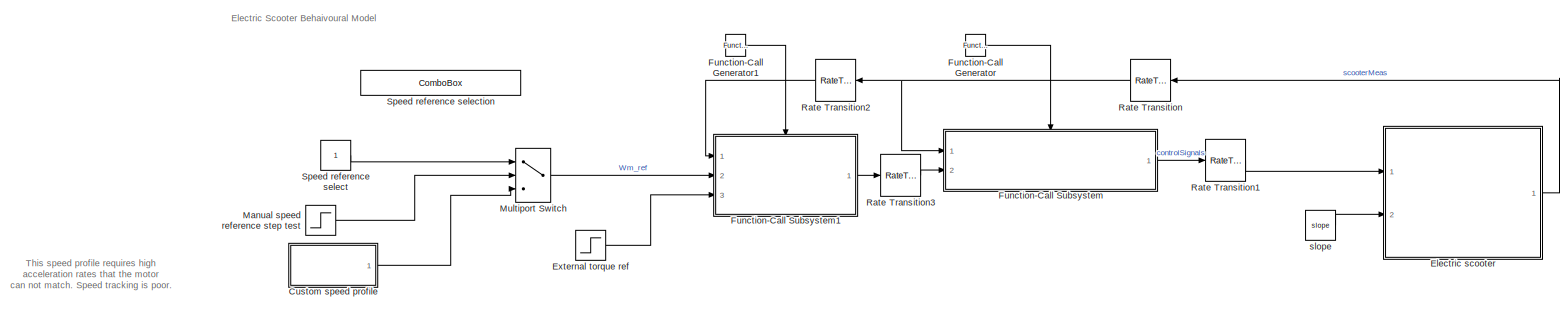
[diagram: root canvas - part 1/1, most of the canvas]
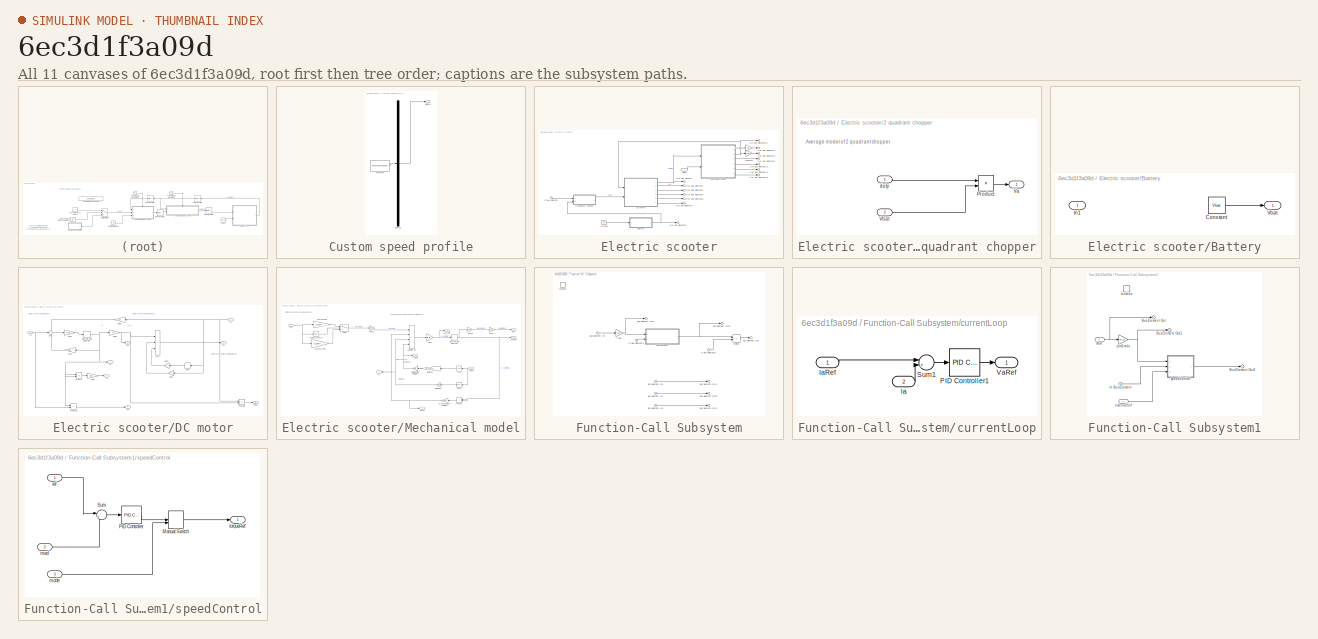
[diagram: thumbnail index - all 11 canvases of the model, root first then tree order]
MODEL slx_6ec3d1f3a09d
KIND model
CONFIG AbsTol = auto
CONFIG EnableMultiTasking = on
CONFIG FixedStep = Ts_mf
CONFIG MaxStep = auto
CONFIG MinStep = auto
CONFIG RelTol = 1e-3
CONFIG SampleTimeConstraint = Unconstrained
CONFIG SolverName = FixedStepAuto
CONFIG StartTime = 0
CONFIG StopTime = 200
BLOCK [SubSystem] Custom speed profile
  ClipboardFcn = sigbuilder_block('clipboard');
  CloseFcn = sigbuilder_block('close');
  ContinueFcn = sigbuilder_block('continue');
  CopyFcn = sigbuilder_block('copy');
  DeleteFcn = sigbuilder_block('delete');
  LoadFcn = sigbuilder_block('load');
  MaskHideContents = on
  ModelCloseFcn = sigbuilder_block('modelClose');
  NameChangeFcn = sigbuilder_block('namechange');
  OpenFcn = sigbuilder_block('open',[437.6 199.2 550.4 400 ]);
  PauseFcn = sigbuilder_block('pause');
  Ports = [0, 1]
  PreSaveFcn = sigbuilder_block('preSave');
  RequestExecContextInheritance = off
  StartFcn = sigbuilder_block('start');
  StopFcn = sigbuilder_block('stop');
  Tag = STV Subsys
BLOCK [Demux] Custom speed profile/Demux
  DisplayOption = none
  Outputs = 1
  Ports = [1, 1]
  Tag = STV Demux
BLOCK [FromWorkspace] Custom speed profile/FromWs
  Tag = STV FromWs
  VariableName = tuvar
BLOCK [Outport] Custom speed profile/Signal 1
  Tag = STV Outport
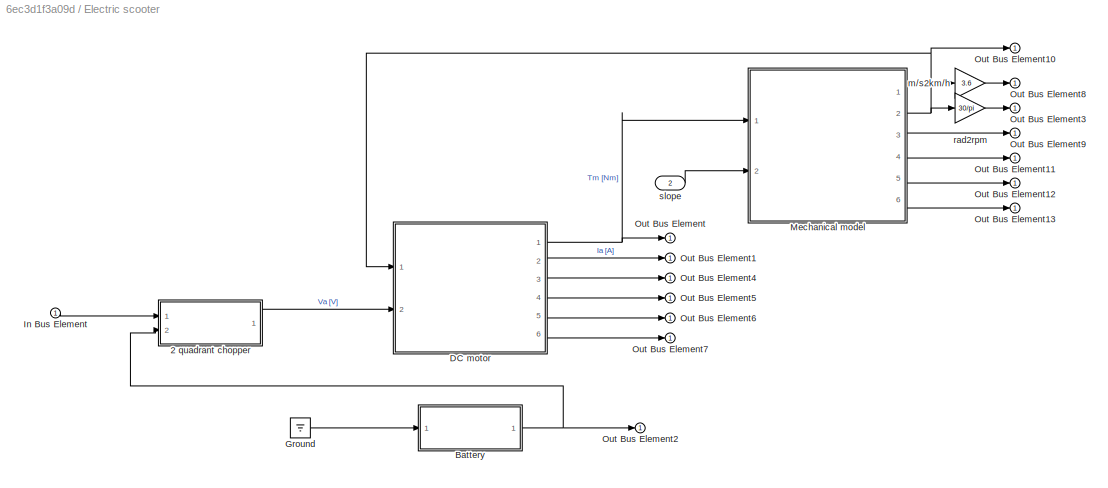
BLOCK [SubSystem] Electric scooter
  Ports = [2, 1]
  RequestExecContextInheritance = off
BLOCK [SubSystem] Electric scooter/2 quadrant chopper
  Ports = [2, 1]
  RequestExecContextInheritance = off
BLOCK [Product] Electric scooter/2 quadrant chopper/Product
  Ports = [2, 1]
BLOCK [Outport] Electric scooter/2 quadrant chopper/Va
BLOCK [Inport] Electric scooter/2 quadrant chopper/Vbat
  Port = 2
BLOCK [Inport] Electric scooter/2 quadrant chopper/duty
BLOCK [SubSystem] Electric scooter/Battery
  Ports = [1, 1]
  RequestExecContextInheritance = off
BLOCK [Constant] Electric scooter/Battery/Constant
  Value = Vbat
BLOCK [Inport] Electric scooter/Battery/In1
BLOCK [Outport] Electric scooter/Battery/Vbat
BLOCK [SubSystem] Electric scooter/DC motor
  Ports = [2, 6]
  RequestExecContextInheritance = off
BLOCK [DiscreteIntegrator] Electric scooter/DC motor/Discrete-Time Integrator
  ICPrevOutput = DiscIntNeverNeededParam
  ICPrevScaledInput = DiscIntNeverNeededParam
  InitialConditionSetting = Auto
  Ports = [1, 1]
  SampleTime = -1
BLOCK [Gain] Electric scooter/DC motor/Gain1
  Gain = D
  NameLocation = top
BLOCK [Gain] Electric scooter/DC motor/Gain2
  Gain = Kf
  NameLocation = top
BLOCK [Gain] Electric scooter/DC motor/Gain3
  Gain = Ra
  NameLocation = top
BLOCK [Gain] Electric scooter/DC motor/Gain4
  Gain = 1/La
BLOCK [Gain] Electric scooter/DC motor/Gain5
  Gain = Kt
BLOCK [Gain] Electric scooter/DC motor/Gain6
  Gain = Ke
BLOCK [Gain] Electric scooter/DC motor/Gain7
  Gain = Ra
BLOCK [Outport] Electric scooter/DC motor/Ia
  Port = 2
  VectorParamsAs1DForOutWhenUnconnected = off
BLOCK [Outport] Electric scooter/DC motor/Pa
  Port = 4
  VectorParamsAs1DForOutWhenUnconnected = off
BLOCK [Outport] Electric scooter/DC motor/Pj
  Port = 3
  VectorParamsAs1DForOutWhenUnconnected = off
BLOCK [Outport] Electric scooter/DC motor/Pmec
  Port = 5
  VectorParamsAs1DForOutWhenUnconnected = off
BLOCK [Product] Electric scooter/DC motor/Product
  Ports = [2, 1]
BLOCK [Product] Electric scooter/DC motor/Product1
  Ports = [2, 1]
BLOCK [Product] Electric scooter/DC motor/Product2
  Ports = [2, 1]
BLOCK [Signum] Electric scooter/DC motor/Sign
BLOCK [Sum] Electric scooter/DC motor/Sum
  IconShape = rectangular
  Inputs = +--
  Ports = [3, 1]
BLOCK [Sum] Electric scooter/DC motor/Sum1
  Inputs = -+-
  Ports = [3, 1]
BLOCK [Outport] Electric scooter/DC motor/Tem
  Port = 6
  VectorParamsAs1DForOutWhenUnconnected = off
BLOCK [Outport] Electric scooter/DC motor/Tm
  VectorParamsAs1DForOutWhenUnconnected = off
BLOCK [Inport] Electric scooter/DC motor/Va
  Port = 2
BLOCK [Inport] Electric scooter/DC motor/W
  NameLocation = top
BLOCK [Ground] Electric scooter/Ground
BLOCK [Inport] Electric scooter/In Bus Element
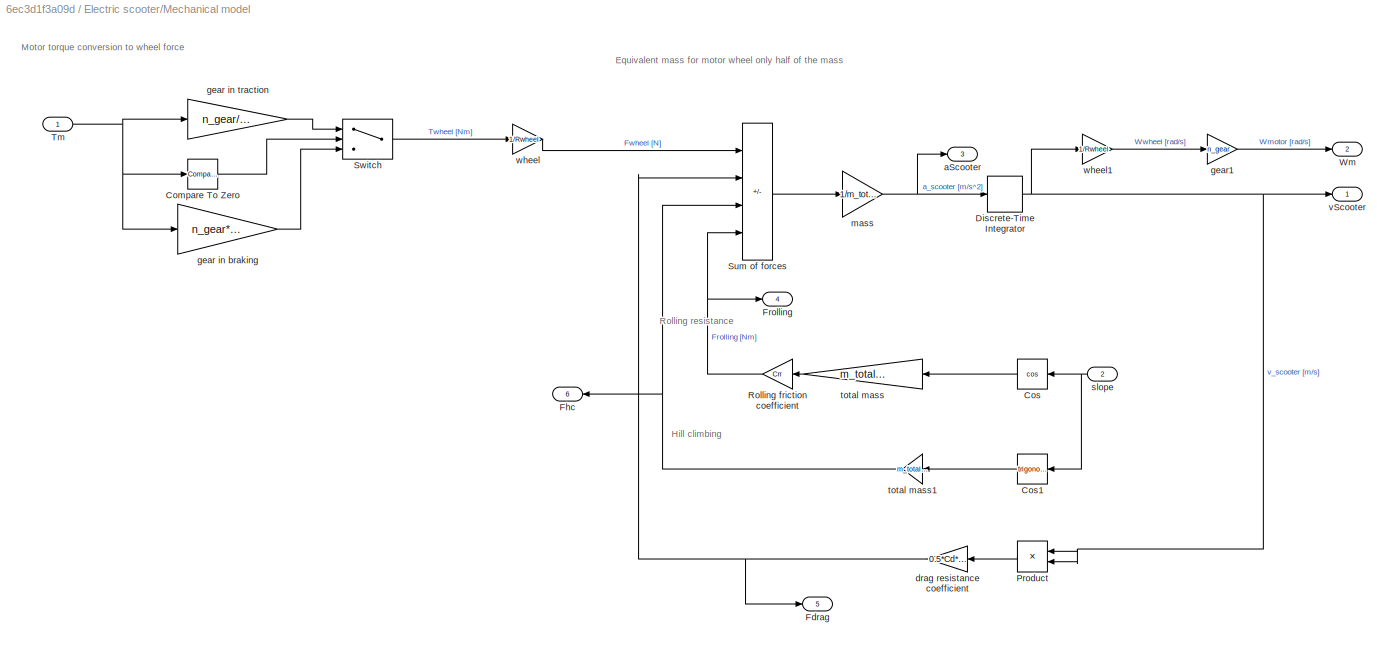
BLOCK [SubSystem] Electric scooter/Mechanical model
  Ports = [2, 6]
  RequestExecContextInheritance = off
BLOCK [Reference] Electric scooter/Mechanical model/Compare To Zero  REF=simulink/Logic and Bit
Operations/Compare
To Zero
  Ports = [1, 1]
  SourceBlock = simulink/Logic and Bit\nOperations/Compare\nTo Zero
  SourceProductBaseCode = SL
  SourceType = Compare To Zero
BLOCK [Trigonometry] Electric scooter/Mechanical model/Cos
  NameLocation = top
  Operator = cos
  Ports = [1, 1]
BLOCK [Trigonometry] Electric scooter/Mechanical model/Cos1
  NameLocation = top
  Ports = [1, 1]
BLOCK [DiscreteIntegrator] Electric scooter/Mechanical model/Discrete-Time Integrator
  ICPrevOutput = DiscIntNeverNeededParam
  ICPrevScaledInput = DiscIntNeverNeededParam
  InitialConditionSetting = Auto
  Ports = [1, 1]
  SampleTime = -1
BLOCK [Outport] Electric scooter/Mechanical model/Fdrag
  Port = 5
BLOCK [Outport] Electric scooter/Mechanical model/Fhc
  NameLocation = top
  Port = 6
BLOCK [Outport] Electric scooter/Mechanical model/Frolling
  Port = 4
BLOCK [Product] Electric scooter/Mechanical model/Product
  NameLocation = top
  Ports = [2, 1]
BLOCK [Gain] Electric scooter/Mechanical model/Rolling friction coefficient
  Gain = Crr
BLOCK [Sum] Electric scooter/Mechanical model/Sum of forces
  IconShape = rectangular
  Inputs = +---
  Ports = [4, 1]
BLOCK [Switch] Electric scooter/Mechanical model/Switch
  Criteria = u2 > Threshold
  InputSameDT = off
  SaturateOnIntegerOverflow = off
BLOCK [Inport] Electric scooter/Mechanical model/Tm
BLOCK [Outport] Electric scooter/Mechanical model/Wm
  Port = 2
BLOCK [Outport] Electric scooter/Mechanical model/aScooter
  Port = 3
BLOCK [Gain] Electric scooter/Mechanical model/drag resistance coefficient
  Gain = 0.5*Cd*A*rho
  NameLocation = top
BLOCK [Gain] Electric scooter/Mechanical model/gear in braking
  Gain = n_gear*eff_gear
BLOCK [Gain] Electric scooter/Mechanical model/gear in traction
  Gain = n_gear/eff_gear
BLOCK [Gain] Electric scooter/Mechanical model/gear1
  Gain = n_gear
BLOCK [Gain] Electric scooter/Mechanical model/mass
  Gain = 1/m_total/2
BLOCK [Inport] Electric scooter/Mechanical model/slope
  NameLocation = top
  Port = 2
BLOCK [Gain] Electric scooter/Mechanical model/total mass
  Gain = m_total/2*g
  NameLocation = top
BLOCK [Gain] Electric scooter/Mechanical model/total mass1
  Gain = m_total/2*g
  NameLocation = top
BLOCK [Outport] Electric scooter/Mechanical model/vScooter
BLOCK [Gain] Electric scooter/Mechanical model/wheel
  Gain = 1/Rwheel
BLOCK [Gain] Electric scooter/Mechanical model/wheel1
  Gain = 1/Rwheel
BLOCK [Outport] Electric scooter/Out Bus Element
BLOCK [Outport] Electric scooter/Out Bus Element1
BLOCK [Outport] Electric scooter/Out Bus Element10
BLOCK [Outport] Electric scooter/Out Bus Element11
BLOCK [Outport] Electric scooter/Out Bus Element12
BLOCK [Outport] Electric scooter/Out Bus Element13
BLOCK [Outport] Electric scooter/Out Bus Element2
BLOCK [Outport] Electric scooter/Out Bus Element3
BLOCK [Outport] Electric scooter/Out Bus Element4
BLOCK [Outport] Electric scooter/Out Bus Element5
BLOCK [Outport] Electric scooter/Out Bus Element6
BLOCK [Outport] Electric scooter/Out Bus Element7
BLOCK [Outport] Electric scooter/Out Bus Element8
BLOCK [Outport] Electric scooter/Out Bus Element9
BLOCK [Gain] Electric scooter/m//s2km//h
  Gain = 3.6
BLOCK [Gain] Electric scooter/rad2rpm
  Gain = 30/pi
BLOCK [Inport] Electric scooter/slope
  Port = 2
BLOCK [Step] External torque ref
  After = Kt*8
  SampleTime = 0
  Time = 0.1
BLOCK [Reference] Function-Call Generator  REF=simulink/Ports &
Subsystems/Function-Call
Generator
  Ports = [0, 1]
  SourceBlock = simulink/Ports &\nSubsystems/Function-Call\nGenerator
  SourceProductBaseCode = SL
  SourceType = Function-Call Generator
BLOCK [Reference] Function-Call Generator1  REF=simulink/Ports &
Subsystems/Function-Call
Generator
  Ports = [0, 1]
  SourceBlock = simulink/Ports &\nSubsystems/Function-Call\nGenerator
  SourceProductBaseCode = SL
  SourceType = Function-Call Generator
BLOCK [SubSystem] Function-Call Subsystem
  Ports = [2, 1, 0, 1]
  RequestExecContextInheritance = off
  TreatAsAtomicUnit = on
BLOCK [Inport] Function-Call Subsystem/Bus Element In1
  Port = 2
BLOCK [Inport] Function-Call Subsystem/Bus Element In2
  Port = 2
BLOCK [Inport] Function-Call Subsystem/Bus Element In3
  Port = 2
BLOCK [Inport] Function-Call Subsystem/Bus Element In4
  Port = 2
BLOCK [Outport] Function-Call Subsystem/Bus Element Out
BLOCK [Outport] Function-Call Subsystem/Bus Element Out1
BLOCK [Outport] Function-Call Subsystem/Bus Element Out2
BLOCK [Outport] Function-Call Subsystem/Bus Element Out3
BLOCK [Outport] Function-Call Subsystem/Bus Element Out4
BLOCK [Outport] Function-Call Subsystem/Bus Element Out5
BLOCK [Product] Function-Call Subsystem/Divide
  Inputs = */
  Ports = [2, 1]
BLOCK [Gain] Function-Call Subsystem/Gain
  Gain = 1/Kt
BLOCK [Inport] Function-Call Subsystem/In Bus Element1
BLOCK [Inport] Function-Call Subsystem/In Bus Element2
BLOCK [SubSystem] Function-Call Subsystem/currentLoop
  Ports = [2, 1]
  RequestExecContextInheritance = off
BLOCK [Inport] Function-Call Subsystem/currentLoop/Ia
  Port = 2
BLOCK [Inport] Function-Call Subsystem/currentLoop/IaRef
BLOCK [Reference] Function-Call Subsystem/currentLoop/PID Controller1  REF=slpidlib/PID Controller
  Ports = [1, 1]
  SourceBlock = slpidlib/PID Controller
  SourceProductBaseCode = SL
  SourceType = PID 1dof
BLOCK [Sum] Function-Call Subsystem/currentLoop/Sum1
  Inputs = |+-
  Ports = [2, 1]
BLOCK [Outport] Function-Call Subsystem/currentLoop/VaRef
BLOCK [TriggerPort] Function-Call Subsystem/function
  Ports = []
  StatesWhenEnabling = held
  TriggerType = function-call
  VariantControl = (inherit)
BLOCK [SubSystem] Function-Call Subsystem1
  Ports = [3, 1, 0, 1]
  RequestExecContextInheritance = off
  TreatAsAtomicUnit = on
BLOCK [Outport] Function-Call Subsystem1/Bus Element Out
BLOCK [Outport] Function-Call Subsystem1/Bus Element Out1
BLOCK [Outport] Function-Call Subsystem1/Bus Element Out2
BLOCK [Inport] Function-Call Subsystem1/In Bus Element
BLOCK [Inport] Function-Call Subsystem1/Wm*
  Port = 2
BLOCK [Inport] Function-Call Subsystem1/externalIref
  Port = 3
BLOCK [TriggerPort] Function-Call Subsystem1/function
  Ports = []
  StatesWhenEnabling = held
  TriggerType = function-call
  VariantControl = (inherit)
BLOCK [Gain] Function-Call Subsystem1/rpm2rads
  Gain = pi/30
BLOCK [SubSystem] Function-Call Subsystem1/speedControl
  Ports = [3, 1]
  RequestExecContextInheritance = off
BLOCK [ManualSwitch] Function-Call Subsystem1/speedControl/Manual Switch
  CurrentSetting = 0
BLOCK [Reference] Function-Call Subsystem1/speedControl/PID Controller  REF=slpidlib/PID Controller
  Ports = [1, 1]
  SourceBlock = slpidlib/PID Controller
  SourceProductBaseCode = SL
  SourceType = PID 1dof
BLOCK [Sum] Function-Call Subsystem1/speedControl/Sum
  Inputs = |+-
  Ports = [2, 1]
BLOCK [Inport] Function-Call Subsystem1/speedControl/med
  Port = 2
BLOCK [Inport] Function-Call Subsystem1/speedControl/mode
  Port = 3
BLOCK [Inport] Function-Call Subsystem1/speedControl/ref
BLOCK [Outport] Function-Call Subsystem1/speedControl/torqueRef
BLOCK [Step] Manual speed reference step test
  After = 1000
  SampleTime = 0
  Time = 0.1
BLOCK [MultiPortSwitch] Multiport Switch
  InputSameDT = off
  Inputs = 2
  Ports = [3, 1]
  SaturateOnIntegerOverflow = off
BLOCK [RateTransition] Rate Transition
  OutPortSampleTime = Tcontrol
BLOCK [RateTransition] Rate Transition1
  OutPortSampleTime = Ts_mf
BLOCK [RateTransition] Rate Transition2
  OutPortSampleTime = Tcontrol*10
BLOCK [RateTransition] Rate Transition3
  OutPortSampleTime = Tcontrol
BLOCK [Constant] Speed reference select
BLOCK [ComboBox] Speed reference selection
  LabelPosition = Hide
  NameLocation = left
  SelectedLabel = Step reference
BLOCK [Constant] slope
  Value = slope
ANNOTATION (root): Electric Scooter Behaivoural Model
ANNOTATION (root): This speed profile requires high acceleration rates that the motor can not match. Speed tracking is poor.
ANNOTATION Electric scooter/2 quadrant chopper: Average model of 2 quadrant chopper
ANNOTATION Electric scooter/DC motor: Motor mechanical torque without losses
ANNOTATION Electric scooter/DC motor: Motorraren eredu elektrikoa
ANNOTATION Electric scooter/DC motor: Motorraren eredu mekanikoa
ANNOTATION Electric scooter/DC motor: T_e_m
ANNOTATION Electric scooter/DC motor: i_a
ANNOTATION Electric scooter/Mechanical model: Equivalent mass for motor wheel only half of the mass
ANNOTATION Electric scooter/Mechanical model: Hill climbing
ANNOTATION Electric scooter/Mechanical model: Motor torque conversion to wheel force
ANNOTATION Electric scooter/Mechanical model: Rolling resistance
LINE Custom speed profile:1 -> Multiport Switch:3
LINE Electric scooter/2 quadrant chopper/Product:1 -> Electric scooter/2 quadrant chopper/Va:1
LINE Electric scooter/2 quadrant chopper/Vbat:1 -> Electric scooter/2 quadrant chopper/Product:2
LINE Electric scooter/2 quadrant chopper/duty:1 -> Electric scooter/2 quadrant chopper/Product:1
LINE Electric scooter/2 quadrant chopper:1 -> Electric scooter/DC motor:2
LINE Electric scooter/Battery/Constant:1 -> Electric scooter/Battery/Vbat:1
NET Electric scooter/Battery:1 -> Electric scooter/2 quadrant chopper:2, Electric scooter/Out Bus Element2:1
NET Electric scooter/DC motor/Discrete-Time Integrator:1 -> Electric scooter/DC motor/Gain3:1, Electric scooter/DC motor/Gain5:1, Electric scooter/DC motor/Ia:1, Electric scooter/DC motor/Product1:1, Electric scooter/DC motor/Product:1, Electric scooter/DC motor/Product:2
LINE Electric scooter/DC motor/Gain1:1 -> Electric scooter/DC motor/Sum:2
LINE Electric scooter/DC motor/Gain2:1 -> Electric scooter/DC motor/Sum:3
LINE Electric scooter/DC motor/Gain3:1 -> Electric scooter/DC motor/Sum1:3
LINE Electric scooter/DC motor/Gain4:1 -> Electric scooter/DC motor/Discrete-Time Integrator:1
NET Electric scooter/DC motor/Gain5:1 -> Electric scooter/DC motor/Product2:2, Electric scooter/DC motor/Sum:1, Electric scooter/DC motor/Tem:1
LINE Electric scooter/DC motor/Gain6:1 -> Electric scooter/DC motor/Sum1:1
LINE Electric scooter/DC motor/Gain7:1 -> Electric scooter/DC motor/Pj:1
LINE Electric scooter/DC motor/Product1:1 -> Electric scooter/DC motor/Pa:1
LINE Electric scooter/DC motor/Product2:1 -> Electric scooter/DC motor/Pmec:1
LINE Electric scooter/DC motor/Product:1 -> Electric scooter/DC motor/Gain7:1
LINE Electric scooter/DC motor/Sign:1 -> Electric scooter/DC motor/Gain2:1
LINE Electric scooter/DC motor/Sum1:1 -> Electric scooter/DC motor/Gain4:1
LINE Electric scooter/DC motor/Sum:1 -> Electric scooter/DC motor/Tm:1
NET Electric scooter/DC motor/Va:1 -> Electric scooter/DC motor/Product1:2, Electric scooter/DC motor/Sum1:2
NET Electric scooter/DC motor/W:1 -> Electric scooter/DC motor/Gain1:1, Electric scooter/DC motor/Gain6:1, Electric scooter/DC motor/Product2:1, Electric scooter/DC motor/Sign:1
NET Electric scooter/DC motor:1 -> Electric scooter/Mechanical model:1, Electric scooter/Out Bus Element:1
LINE Electric scooter/DC motor:2 -> Electric scooter/Out Bus Element1:1
LINE Electric scooter/DC motor:3 -> Electric scooter/Out Bus Element4:1
LINE Electric scooter/DC motor:4 -> Electric scooter/Out Bus Element5:1
LINE Electric scooter/DC motor:5 -> Electric scooter/Out Bus Element6:1
LINE Electric scooter/DC motor:6 -> Electric scooter/Out Bus Element7:1
LINE Electric scooter/Ground:1 -> Electric scooter/Battery:1
LINE Electric scooter/In Bus Element:1 -> Electric scooter/2 quadrant chopper:1
LINE Electric scooter/Mechanical model/Compare To Zero:1 -> Electric scooter/Mechanical model/Switch:2
LINE Electric scooter/Mechanical model/Cos1:1 -> Electric scooter/Mechanical model/total mass1:1
LINE Electric scooter/Mechanical model/Cos:1 -> Electric scooter/Mechanical model/total mass:1
NET Electric scooter/Mechanical model/Discrete-Time Integrator:1 -> Electric scooter/Mechanical model/Product:1, Electric scooter/Mechanical model/Product:2, Electric scooter/Mechanical model/vScooter:1, Electric scooter/Mechanical model/wheel1:1
LINE Electric scooter/Mechanical model/Product:1 -> Electric scooter/Mechanical model/drag resistance coefficient:1
NET Electric scooter/Mechanical model/Rolling friction coefficient:1 -> Electric scooter/Mechanical model/Frolling:1, Electric scooter/Mechanical model/Sum of forces:4
LINE Electric scooter/Mechanical model/Sum of forces:1 -> Electric scooter/Mechanical model/mass:1
LINE Electric scooter/Mechanical model/Switch:1 -> Electric scooter/Mechanical model/wheel:1
NET Electric scooter/Mechanical model/Tm:1 -> Electric scooter/Mechanical model/Compare To Zero:1, Electric scooter/Mechanical model/gear in braking:1, Electric scooter/Mechanical model/gear in traction:1
NET Electric scooter/Mechanical model/drag resistance coefficient:1 -> Electric scooter/Mechanical model/Fdrag:1, Electric scooter/Mechanical model/Sum of forces:2
LINE Electric scooter/Mechanical model/gear in braking:1 -> Electric scooter/Mechanical model/Switch:3
LINE Electric scooter/Mechanical model/gear in traction:1 -> Electric scooter/Mechanical model/Switch:1
LINE Electric scooter/Mechanical model/gear1:1 -> Electric scooter/Mechanical model/Wm:1
NET Electric scooter/Mechanical model/mass:1 -> Electric scooter/Mechanical model/Discrete-Time Integrator:1, Electric scooter/Mechanical model/aScooter:1
NET Electric scooter/Mechanical model/slope:1 -> Electric scooter/Mechanical model/Cos1:1, Electric scooter/Mechanical model/Cos:1
NET Electric scooter/Mechanical model/total mass1:1 -> Electric scooter/Mechanical model/Fhc:1, Electric scooter/Mechanical model/Sum of forces:3
LINE Electric scooter/Mechanical model/total mass:1 -> Electric scooter/Mechanical model/Rolling friction coefficient:1
LINE Electric scooter/Mechanical model/wheel1:1 -> Electric scooter/Mechanical model/gear1:1
LINE Electric scooter/Mechanical model/wheel:1 -> Electric scooter/Mechanical model/Sum of forces:1
LINE Electric scooter/Mechanical model:1 -> Electric scooter/m//s2km//h:1
NET Electric scooter/Mechanical model:2 -> Electric scooter/DC motor:1, Electric scooter/Out Bus Element10:1, Electric scooter/rad2rpm:1
LINE Electric scooter/Mechanical model:3 -> Electric scooter/Out Bus Element9:1
LINE Electric scooter/Mechanical model:4 -> Electric scooter/Out Bus Element11:1
LINE Electric scooter/Mechanical model:5 -> Electric scooter/Out Bus Element12:1
LINE Electric scooter/Mechanical model:6 -> Electric scooter/Out Bus Element13:1
LINE Electric scooter/m//s2km//h:1 -> Electric scooter/Out Bus Element8:1
LINE Electric scooter/rad2rpm:1 -> Electric scooter/Out Bus Element3:1
LINE Electric scooter/slope:1 -> Electric scooter/Mechanical model:2
LINE Electric scooter:1 -> Rate Transition:1
LINE External torque ref:1 -> Function-Call Subsystem1:3
LINE Function-Call Generator1:1 -> Function-Call Subsystem1:trigger
LINE Function-Call Generator:1 -> Function-Call Subsystem:trigger
LINE Function-Call Subsystem/Bus Element In1:1 -> Function-Call Subsystem/Bus Element Out5:1
LINE Function-Call Subsystem/Bus Element In2:1 -> Function-Call Subsystem/Bus Element Out4:1
LINE Function-Call Subsystem/Bus Element In3:1 -> Function-Call Subsystem/Bus Element Out2:1
LINE Function-Call Subsystem/Bus Element In4:1 -> Function-Call Subsystem/Gain:1
LINE Function-Call Subsystem/Divide:1 -> Function-Call Subsystem/Bus Element Out:1
NET Function-Call Subsystem/Gain:1 -> Function-Call Subsystem/Bus Element Out1:1, Function-Call Subsystem/currentLoop:1
LINE Function-Call Subsystem/In Bus Element1:1 -> Function-Call Subsystem/currentLoop:2
LINE Function-Call Subsystem/In Bus Element2:1 -> Function-Call Subsystem/Divide:2
LINE Function-Call Subsystem/currentLoop/Ia:1 -> Function-Call Subsystem/currentLoop/Sum1:2
LINE Function-Call Subsystem/currentLoop/IaRef:1 -> Function-Call Subsystem/currentLoop/Sum1:1
LINE Function-Call Subsystem/currentLoop/PID Controller1:1 -> Function-Call Subsystem/currentLoop/VaRef:1
LINE Function-Call Subsystem/currentLoop/Sum1:1 -> Function-Call Subsystem/currentLoop/PID Controller1:1
NET Function-Call Subsystem/currentLoop:1 -> Function-Call Subsystem/Bus Element Out3:1, Function-Call Subsystem/Divide:1
LINE Function-Call Subsystem1/In Bus Element:1 -> Function-Call Subsystem1/speedControl:2
NET Function-Call Subsystem1/Wm*:1 -> Function-Call Subsystem1/Bus Element Out:1, Function-Call Subsystem1/rpm2rads:1
LINE Function-Call Subsystem1/externalIref:1 -> Function-Call Subsystem1/speedControl:3
NET Function-Call Subsystem1/rpm2rads:1 -> Function-Call Subsystem1/Bus Element Out1:1, Function-Call Subsystem1/speedControl:1
LINE Function-Call Subsystem1/speedControl/Manual Switch:1 -> Function-Call Subsystem1/speedControl/torqueRef:1
LINE Function-Call Subsystem1/speedControl/PID Controller:1 -> Function-Call Subsystem1/speedControl/Manual Switch:1
LINE Function-Call Subsystem1/speedControl/Sum:1 -> Function-Call Subsystem1/speedControl/PID Controller:1
LINE Function-Call Subsystem1/speedControl/med:1 -> Function-Call Subsystem1/speedControl/Sum:2
LINE Function-Call Subsystem1/speedControl/mode:1 -> Function-Call Subsystem1/speedControl/Manual Switch:2
LINE Function-Call Subsystem1/speedControl/ref:1 -> Function-Call Subsystem1/speedControl/Sum:1
LINE Function-Call Subsystem1/speedControl:1 -> Function-Call Subsystem1/Bus Element Out2:1
LINE Function-Call Subsystem1:1 -> Rate Transition3:1
LINE Function-Call Subsystem:1 -> Rate Transition1:1
LINE Manual speed reference step test:1 -> Multiport Switch:2
LINE Multiport Switch:1 -> Function-Call Subsystem1:2
LINE Rate Transition1:1 -> Electric scooter:1
LINE Rate Transition2:1 -> Function-Call Subsystem1:1
LINE Rate Transition3:1 -> Function-Call Subsystem:2
NET Rate Transition:1 -> Function-Call Subsystem:1, Rate Transition2:1
LINE Speed reference select:1 -> Multiport Switch:1
LINE slope:1 -> Electric scooter:2
note: NET lines group one-source signal fan-out (src -> all destinations, sorted); 1:1 wires keep LINE
CHART Test Assessment Block states=4 transitions=14
  STATE_LABEL 'Run\n\n'
  STATE_LABEL 'steadyStateCheck\nverify(abs(IaRef-Ia)<0.02)'
  STATE_LABEL 'overshootCheck\nverify(Ia < 1.2*IaRef)'
  STATE_LABEL 'Run_1\nend'
  STATE_LABEL '[(((t > 0.506) & (t<0.58)) | ((t > 1.005) & (t<1.1)))\n]'
  STATE_LABEL '[~in(Run.steadyStateCheck)]'
  STATE_LABEL '[(((t > 0.5) & (t<0.506)) | ((t > 1) & (t<1.005)))\n]'
  STATE_LABEL '[~in(Run.overshootCheck)]'
  STATE_LABEL '[~in(Run.Run_1)]'
  STATE_LABEL 'steadyStateCheck\nverify(abs(IaRef-Ia)<0.02)'
  STATE_LABEL 'overshootCheck\nverify(Ia < 1.2*IaRef)'
  STATE_LABEL 'Run_1\nend'
CHART Test Sequence states=4 transitions=4
  STATE_LABEL 'init\n\n%% Initialize data outputs.\nIaRef = 0;'
  STATE_LABEL 'step_1\nIaRef = 5;'
  STATE_LABEL 'step_2\nIaRef = 10;'
  STATE_LABEL 'end'
